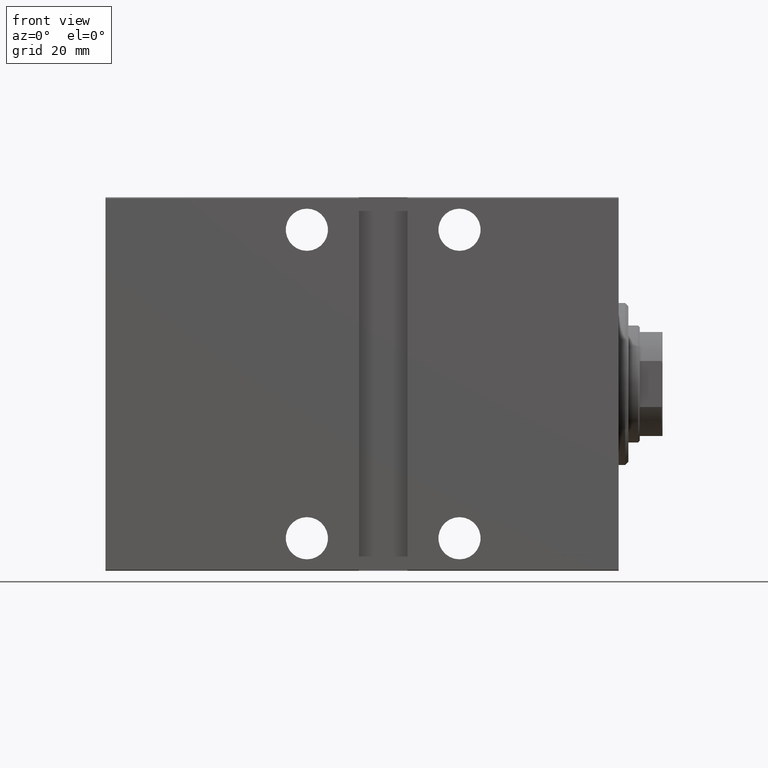
[diagram: clean part render]
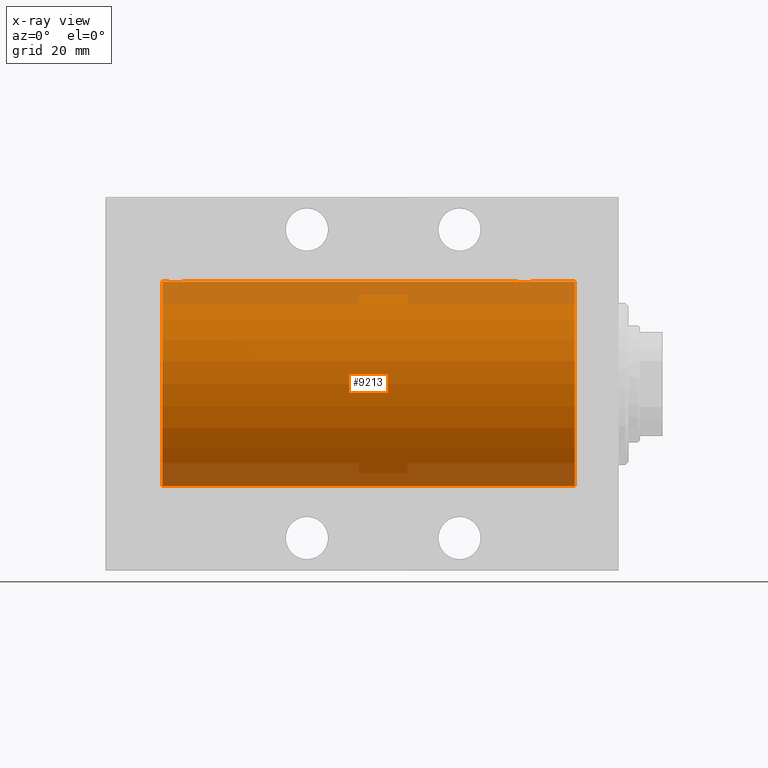
[diagram: x-ray — body ghosted, one internal face saturated and labeled with its STEP entity id]
A machine part, front view, then the same camera in x-ray: the body is ghosted and one INTERNAL B-rep face — a face not visible from any outside direction — is saturated and labeled: STEP entity #9213.
In plain terms, the highlighted cylindrical surface (partial cylindrical patch) has radius 31.5 mm, axis along (1, 0, -0).
Its self-contained STEP definition (entity closure, byte-faithful):
#284 = CARTESIAN_POINT ( 'NONE',  ( 139.5000000000000000, -9.720114367098934135E-16, 31.50000000000000000 ) ) ;
#387 = VERTEX_POINT ( 'NONE', #25102 ) ;
#473 = CARTESIAN_POINT ( 'NONE',  ( 140.5000000000000000, 3.857637417314162689E-15, -31.50000000000000000 ) ) ;
#720 = DIRECTION ( 'NONE',  ( -1.000000000000000000, -0.000000000000000000, -0.000000000000000000 ) ) ;
#1156 = FACE_OUTER_BOUND ( 'NONE', #5879, .T. ) ;
#1228 = DIRECTION ( 'NONE',  ( -1.000000000000000000, 0.000000000000000000, 0.000000000000000000 ) ) ;
#1608 = CARTESIAN_POINT ( 'NONE',  ( 139.1036658644080433, 1.503114925126266321, 31.46454030768326149 ) ) ;
#2938 = LINE ( 'NONE', #473, #17584 ) ;
#3654 = AXIS2_PLACEMENT_3D ( 'NONE', #8462, #39043, #5147 ) ;
#3981 = VERTEX_POINT ( 'NONE', #15200 ) ;
#4093 = CARTESIAN_POINT ( 'NONE',  ( 32.00000000000000000, -4.480989031009259614E-16, 31.50000000000000000 ) ) ;
#4702 = B_SPLINE_CURVE_WITH_KNOTS ( 'NONE', 3,
 ( #39061, #5381, #18456, #18880, #22206, #39275, #31975, #12676, #39709, #15140, #25753, #8484, #25321, #15348, #35723, #36378, #9348, #38852, #29069, #22855, #16004, #22639, #18677, #21991, #42598, #35508, #5169, #8914, #35937, #5593, #29511, #19095, #39492, #32627 ),
 .UNSPECIFIED., .F., .F.,
 ( 4, 2, 2, 2, 2, 2, 2, 2, 2, 2, 2, 2, 2, 2, 2, 2, 4 ),
 ( 1.580622136457331310E-18, 0.0005865426616959182283, 0.001173085323391834722, 0.001759627985087751107, 0.002346170646783668143, 0.002932713308479584745, 0.003519255970175500913, 0.004105798631871417081, 0.004692341293567334551, 0.005278883955263251153, 0.005865426616959167755, 0.006451969278655083490, 0.007038511940351000092, 0.007625054602046918428, 0.008211597263742835898, 0.008798139925438753367, 0.009384682587134670836 ),
 .UNSPECIFIED. ) ;
#4941 = CARTESIAN_POINT ( 'NONE',  ( 135.5344721955793545, 2.847177118681585739, 31.37115363072576102 ) ) ;
#5147 = DIRECTION ( 'NONE',  ( 0.000000000000000000, 0.000000000000000000, 1.000000000000000000 ) ) ;
#5169 = CARTESIAN_POINT ( 'NONE',  ( 26.61488042651788533, 1.830131931565285086, 31.44721086712686642 ) ) ;
#5381 = CARTESIAN_POINT ( 'NONE',  ( 32.00000000000000711, 0.1983379036618947711, 31.49999999999999289 ) ) ;
#5392 = DIRECTION ( 'NONE',  ( -1.000000000000000000, -0.000000000000000000, -0.000000000000000000 ) ) ;
#5463 = VERTEX_POINT ( 'NONE', #4093 ) ;
#5593 = CARTESIAN_POINT ( 'NONE',  ( 26.15313998394374195, 0.9664718879465923340, 31.48569500832682522 ) ) ;
#5879 = EDGE_LOOP ( 'NONE', ( #37116, #34688, #41081, #32116, #22554, #21018, #38123, #36263 ) ) ;
#6068 = DIRECTION ( 'NONE',  ( 0.000000000000000000, 0.000000000000000000, 1.000000000000000000 ) ) ;
#6182 = CARTESIAN_POINT ( 'NONE',  ( 137.8291560116500136, 2.696575640577657307, 31.38445666459465500 ) ) ;
#6543 = VERTEX_POINT ( 'NONE', #284 ) ;
#7481 = CARTESIAN_POINT ( 'NONE',  ( 133.5000000000000000, 0.1958503357044827364, 31.50000000000000711 ) ) ;
#8250 = CARTESIAN_POINT ( 'NONE',  ( 136.1064040194889344, 2.980533683278888901, 31.35869737338551388 ) ) ;
#8462 = CARTESIAN_POINT ( 'NONE',  ( 140.5000000000000000, 0.000000000000000000, 0.000000000000000000 ) ) ;
#8468 = CARTESIAN_POINT ( 'NONE',  ( 134.2389408254605883, 1.981627308739901450, 31.43792063499535061 ) ) ;
#8484 = CARTESIAN_POINT ( 'NONE',  ( 30.50363134844576862, 2.603460270751702499, 31.39242096616744959 ) ) ;
#8533 = DIRECTION ( 'NONE',  ( 0.000000000000000000, 0.000000000000000000, 1.000000000000000000 ) ) ;
#8914 = CARTESIAN_POINT ( 'NONE',  ( 26.39764130386935292, 1.505293155307505071, 31.46443304312125022 ) ) ;
#9025 = VECTOR ( 'NONE', #30916, 1000.000000000000000 ) ;
#9213 = ADVANCED_FACE ( 'NONE', ( #1156 ), #14677, .F. ) ;
#9348 = CARTESIAN_POINT ( 'NONE',  ( 29.19688046033348172, 2.999928894260104784, 31.35682424344752306 ) ) ;
#9505 = CARTESIAN_POINT ( 'NONE',  ( 136.3052925072517212, 3.000070712257540073, 31.35681067529873189 ) ) ;
#9720 = CARTESIAN_POINT ( 'NONE',  ( 137.4681616584070980, 2.846197268611689868, 31.37124163027858614 ) ) ;
#10015 = EDGE_CURVE ( 'NONE', #42783, #3981, #28415, .T. ) ;
#10341 = CARTESIAN_POINT ( 'NONE',  ( 140.5000000000000000, 0.000000000000000000, 31.50000000000000000 ) ) ;
#10718 = B_SPLINE_CURVE_WITH_KNOTS ( 'NONE', 3,
 ( #43401, #33435, #16152, #13049, #36314, #26554, #1608, #40077, #42963, #12831, #23228, #39861, #6182, #9720, #12606, #36748, #30097, #9505, #8250, #35272, #4941, #18442, #28626, #42156, #38837, #8468, #35494, #18661, #40722, #17448, #30747, #41161, #7481, #36963 ),
 .UNSPECIFIED., .F., .F.,
 ( 4, 2, 2, 2, 2, 2, 2, 2, 2, 2, 2, 2, 2, 2, 2, 2, 4 ),
 ( 9.445319204176894989E-19, 0.0005865426616959173610, 0.001173085323391833855, 0.001759627985087750240, 0.002346170646783666408, 0.002932713308479583010, 0.003519255970175499178, 0.004105798631871415347, 0.004692341293567331949, 0.005278883955263248551, 0.005865426616959165153, 0.006451969278655080887, 0.007038511940350997489, 0.007625054602046914091, 0.008211597263742830694, 0.008798139925438748163, 0.009384682587134663898 ),
 .UNSPECIFIED. ) ;
#11859 = CARTESIAN_POINT ( 'NONE',  ( 140.5000000000000000, 0.000000000000000000, 0.000000000000000000 ) ) ;
#12039 = CARTESIAN_POINT ( 'NONE',  ( 140.5000000000000000, 0.000000000000000000, 31.50000000000000000 ) ) ;
#12606 = CARTESIAN_POINT ( 'NONE',  ( 137.2789700859314621, 2.903824817694236948, 31.36589387714387556 ) ) ;
#12676 = CARTESIAN_POINT ( 'NONE',  ( 31.38591626639475862, 1.829162098167824713, 31.44727042639135206 ) ) ;
#12690 = CIRCLE ( 'NONE', #13414, 31.50000000000000000 ) ;
#12831 = CARTESIAN_POINT ( 'NONE',  ( 138.4825741177319856, 2.260013192167877438, 31.41912713670170376 ) ) ;
#13049 = CARTESIAN_POINT ( 'NONE',  ( 139.4042380662974097, 0.7769457993854324007, 31.49100119919085472 ) ) ;
#13414 = AXIS2_PLACEMENT_3D ( 'NONE', #11859, #1228, #8533 ) ;
#14677 = CYLINDRICAL_SURFACE ( 'NONE', #3654, 31.50000000000000000 ) ;
#14984 = AXIS2_PLACEMENT_3D ( 'NONE', #26441, #32886, #6068 ) ;
#15140 = CARTESIAN_POINT ( 'NONE',  ( 30.98257411773193581, 2.260013192167882767, 31.41912713670169666 ) ) ;
#15200 = CARTESIAN_POINT ( 'NONE',  ( 13.50000000000001243, 3.857637417314162689E-15, -31.50000000000000000 ) ) ;
#15348 = CARTESIAN_POINT ( 'NONE',  ( 29.96816165840710156, 2.846197268611692532, 31.37124163027860035 ) ) ;
#16004 = CARTESIAN_POINT ( 'NONE',  ( 28.03447219557934744, 2.847177118681587515, 31.37115363072576102 ) ) ;
#16152 = CARTESIAN_POINT ( 'NONE',  ( 139.4805248189751126, 0.3933386891556659992, 31.49812829325316343 ) ) ;
#17400 = VERTEX_POINT ( 'NONE', #37465 ) ;
#17448 = CARTESIAN_POINT ( 'NONE',  ( 133.6531399839437597, 0.9664718879465937773, 31.48569500832682522 ) ) ;
#17584 = VECTOR ( 'NONE', #37036, 1000.000000000000000 ) ;
#18442 = CARTESIAN_POINT ( 'NONE',  ( 135.1711104428413819, 2.696796994793643876, 31.38443855856934306 ) ) ;
#18456 = CARTESIAN_POINT ( 'NONE',  ( 31.98052481897509125, 0.3933386891556666098, 31.49812829325316343 ) ) ;
#18661 = CARTESIAN_POINT ( 'NONE',  ( 133.8976413038693920, 1.505293155307504183, 31.46443304312125022 ) ) ;
#18677 = CARTESIAN_POINT ( 'NONE',  ( 27.49557653296075443, 2.602863964129817020, 31.39246667950590464 ) ) ;
#18880 = CARTESIAN_POINT ( 'NONE',  ( 31.90423806629733861, 0.7769457993854333999, 31.49100119919084051 ) ) ;
#19095 = CARTESIAN_POINT ( 'NONE',  ( 26.01962964533703726, 0.3947854228308206870, 31.49811339059599291 ) ) ;
#21018 = ORIENTED_EDGE ( 'NONE', *, *, #36173, .T. ) ;
#21988 = VECTOR ( 'NONE', #720, 1000.000000000000000 ) ;
#21991 = CARTESIAN_POINT ( 'NONE',  ( 27.17061414532871311, 2.385694485610540649, 31.40971707706042437 ) ) ;
#22206 = CARTESIAN_POINT ( 'NONE',  ( 31.84649213527307410, 0.9675486622706128692, 31.48566161620711767 ) ) ;
#22554 = ORIENTED_EDGE ( 'NONE', *, *, #34977, .T. ) ;
#22639 = CARTESIAN_POINT ( 'NONE',  ( 27.67111044284134991, 2.696796994793645652, 31.38443855856933595 ) ) ;
#22855 = CARTESIAN_POINT ( 'NONE',  ( 28.22154160523339783, 2.903876953428278895, 31.36588880666518619 ) ) ;
#23228 = CARTESIAN_POINT ( 'NONE',  ( 138.3315883602736562, 2.384155341399021744, 31.40983767558391193 ) ) ;
#23987 = CARTESIAN_POINT ( 'NONE',  ( 140.5000000000000000, 0.000000000000000000, 31.50000000000000000 ) ) ;
#25102 = CARTESIAN_POINT ( 'NONE',  ( 26.00000000000000355, -2.117263226567934635E-23, 31.50000000000000000 ) ) ;
#25254 = VECTOR ( 'NONE', #5392, 1000.000000000000000 ) ;
#25317 = VERTEX_POINT ( 'NONE', #10341 ) ;
#25321 = CARTESIAN_POINT ( 'NONE',  ( 30.32915601165002784, 2.696575640577657751, 31.38445666459465500 ) ) ;
#25753 = CARTESIAN_POINT ( 'NONE',  ( 30.83158836027363847, 2.384155341399025740, 31.40983767558391193 ) ) ;
#26441 = CARTESIAN_POINT ( 'NONE',  ( 13.50000000000001243, 0.000000000000000000, 0.000000000000000000 ) ) ;
#26554 = CARTESIAN_POINT ( 'NONE',  ( 139.1958397180050042, 1.330832861354131813, 31.47239936387596870 ) ) ;
#27802 = CARTESIAN_POINT ( 'NONE',  ( 140.5000000000000000, 0.000000000000000000, 31.50000000000000000 ) ) ;
#28292 = CARTESIAN_POINT ( 'NONE',  ( 13.50000000000001243, 0.000000000000000000, 31.50000000000000000 ) ) ;
#28415 = CIRCLE ( 'NONE', #14984, 31.50000000000000000 ) ;
#28626 = CARTESIAN_POINT ( 'NONE',  ( 134.9955765329607402, 2.602863964129810803, 31.39246667950590464 ) ) ;
#28864 = LINE ( 'NONE', #12039, #25254 ) ;
#29069 = CARTESIAN_POINT ( 'NONE',  ( 28.60640401948892020, 2.980533683278890233, 31.35869737338551388 ) ) ;
#29511 = CARTESIAN_POINT ( 'NONE',  ( 26.09639262129909909, 0.7794402936641343649, 31.49094275383854225 ) ) ;
#30097 = CARTESIAN_POINT ( 'NONE',  ( 136.6968804603335457, 2.999928894260101675, 31.35682424344752306 ) ) ;
#30747 = CARTESIAN_POINT ( 'NONE',  ( 133.5963926212991453, 0.7794402936641343649, 31.49094275383853514 ) ) ;
#30916 = DIRECTION ( 'NONE',  ( -1.000000000000000000, -0.000000000000000000, -0.000000000000000000 ) ) ;
#31216 = EDGE_CURVE ( 'NONE', #387, #42783, #28864, .T. ) ;
#31975 = CARTESIAN_POINT ( 'NONE',  ( 31.60366586440800063, 1.503114925126265433, 31.46454030768325438 ) ) ;
#32116 = ORIENTED_EDGE ( 'NONE', *, *, #41125, .T. ) ;
#32627 = CARTESIAN_POINT ( 'NONE',  ( 26.00000000000000355, -2.117263226567934635E-23, 31.50000000000000000 ) ) ;
#32886 = DIRECTION ( 'NONE',  ( -1.000000000000000000, 0.000000000000000000, 0.000000000000000000 ) ) ;
#33435 = CARTESIAN_POINT ( 'NONE',  ( 139.4999999999999716, 0.1983379036618955482, 31.50000000000000000 ) ) ;
#34688 = ORIENTED_EDGE ( 'NONE', *, *, #39589, .F. ) ;
#34977 = EDGE_CURVE ( 'NONE', #40242, #5463, #41549, .T. ) ;
#35216 = CARTESIAN_POINT ( 'NONE',  ( 133.5000000000000000, -2.118130973563677748E-23, 31.50000000000000000 ) ) ;
#35272 = CARTESIAN_POINT ( 'NONE',  ( 135.7215416052334547, 2.903876953428278007, 31.36588880666517909 ) ) ;
#35494 = CARTESIAN_POINT ( 'NONE',  ( 134.1148804265178569, 1.830131931565282866, 31.44721086712685931 ) ) ;
#35508 = CARTESIAN_POINT ( 'NONE',  ( 26.73894082546058470, 1.981627308739912996, 31.43792063499535061 ) ) ;
#35723 = CARTESIAN_POINT ( 'NONE',  ( 29.77897008593146211, 2.903824817694239613, 31.36589387714388266 ) ) ;
#35937 = CARTESIAN_POINT ( 'NONE',  ( 26.30368186223716975, 1.329867798385262700, 31.47244047903476627 ) ) ;
#36173 = EDGE_CURVE ( 'NONE', #5463, #387, #4702, .T. ) ;
#36263 = ORIENTED_EDGE ( 'NONE', *, *, #10015, .T. ) ;
#36314 = CARTESIAN_POINT ( 'NONE',  ( 139.3464921352731096, 0.9675486622706127582, 31.48566161620712478 ) ) ;
#36378 = CARTESIAN_POINT ( 'NONE',  ( 29.39162658774828785, 2.980875975682597989, 31.35866508162785848 ) ) ;
#36748 = CARTESIAN_POINT ( 'NONE',  ( 136.8916265877483056, 2.980875975682595325, 31.35866508162785138 ) ) ;
#36963 = CARTESIAN_POINT ( 'NONE',  ( 133.5000000000000000, -2.118130973563677748E-23, 31.50000000000000000 ) ) ;
#37036 = DIRECTION ( 'NONE',  ( -1.000000000000000000, -0.000000000000000000, -0.000000000000000000 ) ) ;
#37116 = ORIENTED_EDGE ( 'NONE', *, *, #37124, .F. ) ;
#37124 = EDGE_CURVE ( 'NONE', #17400, #3981, #2938, .T. ) ;
#37284 = LINE ( 'NONE', #23987, #21988 ) ;
#37465 = CARTESIAN_POINT ( 'NONE',  ( 140.5000000000000000, 3.857637417314162689E-15, -31.50000000000000000 ) ) ;
#38123 = ORIENTED_EDGE ( 'NONE', *, *, #31216, .T. ) ;
#38837 = CARTESIAN_POINT ( 'NONE',  ( 134.5191130087499118, 2.261707786034449441, 31.41901301017587755 ) ) ;
#38852 = CARTESIAN_POINT ( 'NONE',  ( 28.80529250725174606, 3.000070712257541850, 31.35681067529873189 ) ) ;
#39043 = DIRECTION ( 'NONE',  ( -1.000000000000000000, -0.000000000000000000, -0.000000000000000000 ) ) ;
#39061 = CARTESIAN_POINT ( 'NONE',  ( 32.00000000000000000, -4.480989031009259614E-16, 31.50000000000000000 ) ) ;
#39275 = CARTESIAN_POINT ( 'NONE',  ( 31.69583971800497224, 1.330832861354133145, 31.47239936387597581 ) ) ;
#39492 = CARTESIAN_POINT ( 'NONE',  ( 26.00000000000001066, 0.1958503357044831805, 31.50000000000001421 ) ) ;
#39589 = EDGE_CURVE ( 'NONE', #25317, #17400, #12690, .T. ) ;
#39709 = CARTESIAN_POINT ( 'NONE',  ( 31.25924903376736808, 1.983444873066717129, 31.43779820687993976 ) ) ;
#39861 = CARTESIAN_POINT ( 'NONE',  ( 138.0036313484457935, 2.603460270751699390, 31.39242096616744249 ) ) ;
#40077 = CARTESIAN_POINT ( 'NONE',  ( 138.8859162663947302, 1.829162098167824491, 31.44727042639135917 ) ) ;
#40242 = VERTEX_POINT ( 'NONE', #35216 ) ;
#40722 = CARTESIAN_POINT ( 'NONE',  ( 133.8036818622371698, 1.329867798385263589, 31.47244047903475916 ) ) ;
#41081 = ORIENTED_EDGE ( 'NONE', *, *, #43297, .T. ) ;
#41125 = EDGE_CURVE ( 'NONE', #6543, #40242, #10718, .T. ) ;
#41161 = CARTESIAN_POINT ( 'NONE',  ( 133.5196296453370621, 0.3947854228308210756, 31.49811339059598581 ) ) ;
#41549 = LINE ( 'NONE', #27802, #9025 ) ;
#42156 = CARTESIAN_POINT ( 'NONE',  ( 134.6706141453286989, 2.385694485610532212, 31.40971707706042437 ) ) ;
#42598 = CARTESIAN_POINT ( 'NONE',  ( 27.01911300874992961, 2.261707786034460099, 31.41901301017587755 ) ) ;
#42783 = VERTEX_POINT ( 'NONE', #28292 ) ;
#42963 = CARTESIAN_POINT ( 'NONE',  ( 138.7592490337673894, 1.983444873066710468, 31.43779820687993976 ) ) ;
#43297 = EDGE_CURVE ( 'NONE', #25317, #6543, #37284, .T. ) ;
#43401 = CARTESIAN_POINT ( 'NONE',  ( 139.5000000000000000, -9.720114367098934135E-16, 31.50000000000000000 ) ) ;